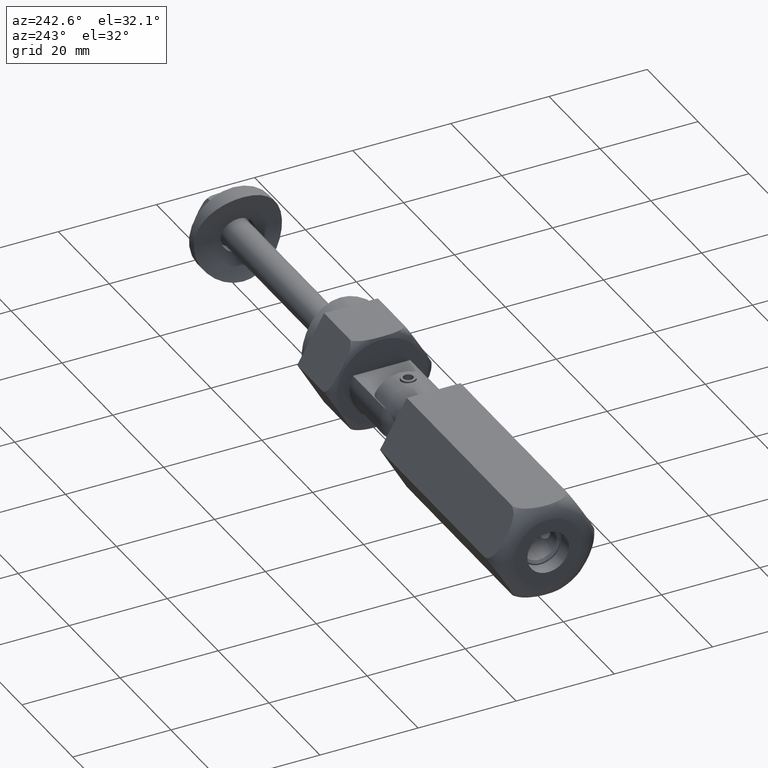
[diagram: clean part render]
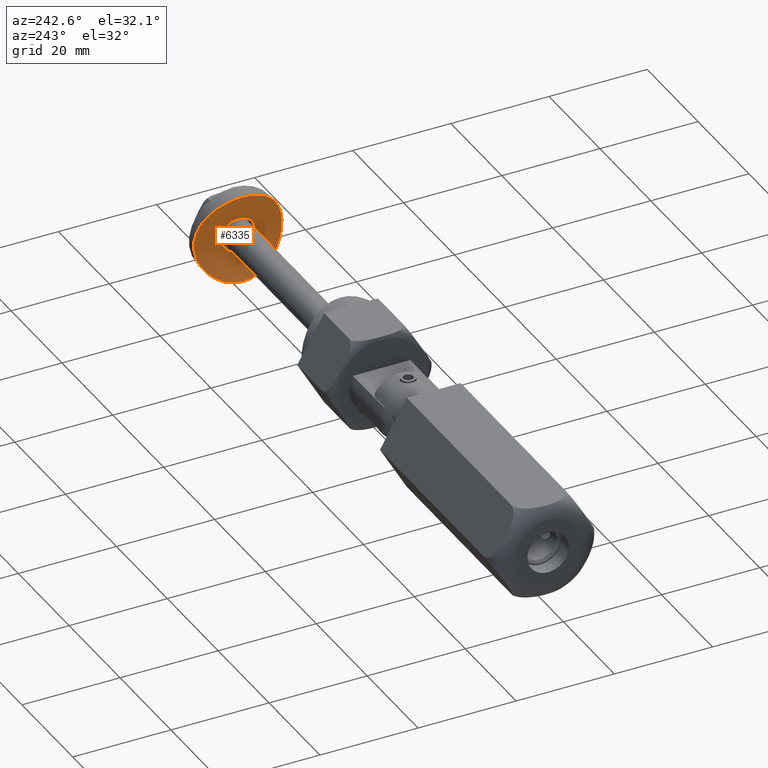
[diagram: same view with one face highlighted and labeled with its STEP entity id]
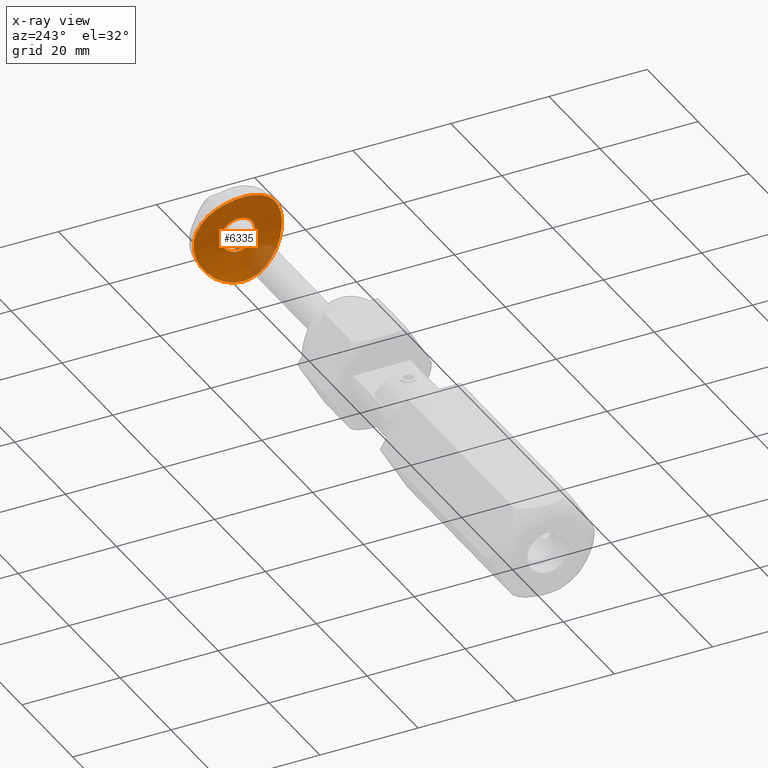
[diagram: x-ray of the same camera — body ghosted, the highlighted face saturated]
A machine part, auxiliary view. The second image highlights one B-rep face of the part: STEP entity #6335.
The next image is the same camera in x-ray: the body ghosted, the highlighted face saturated — about 10% of this face is hidden behind the body in this view.
In plain terms, the highlighted cylindrical surface (partial cylindrical patch) has radius 21.2 mm, axis along (0, 1, 0).
Its self-contained STEP definition (entity closure, byte-faithful):
#148 = CARTESIAN_POINT ( 'NONE',  ( -5.497450429022882723, 7.131813691955863455, 2.823855749445251195 ) ) ;
#271 = CARTESIAN_POINT ( 'NONE',  ( 9.000400974029087564, -0.2839722160764822645, 4.105397047312537850 ) ) ;
#323 = CARTESIAN_POINT ( 'NONE',  ( 3.745224452304390717, -8.189008184627281750, 2.431627000577344155 ) ) ;
#381 = CARTESIAN_POINT ( 'NONE',  ( 0.6023502318451280368, -8.984815514353620358, 2.106459186793928406 ) ) ;
#447 = CARTESIAN_POINT ( 'NONE',  ( -3.205093018567954477, 8.415055338208812685, 2.341889825580586670 ) ) ;
#450 = CARTESIAN_POINT ( 'NONE',  ( -3.037267722292587457, 1.754211687608835613, 2.318307036184326986 ) ) ;
#457 = B_SPLINE_CURVE_WITH_KNOTS ( 'NONE', 3,
 ( #2893, #2950, #12618, #16894, #4207, #5515, #1368, #12674, #11139, #5626, #4262, #15381, #15439, #7085, #8497, #148, #9893, #7377, #12962, #447, #11487, #17018, #10004, #1652, #14402, #17143, #7197, #13015, #3298, #5789, #5974, #4560, #15552, #12900, #8797, #10128, #4622, #15608, #10192, #1834, #6039, #8611, #3122, #7312, #14222, #271, #4498, #16953, #15792, #11427, #3061, #7448, #15671, #12835, #14339, #13074, #11610, #4435, #5850, #7256, #17081, #11676, #14162, #8670, #323, #10067, #1897, #8732, #1710, #381, #17212, #8861, #1777, #14285, #509, #5912, #15734, #11544, #3176, #3235, #10261, #7705, #3555, #2096, #3426, #7577, #11810, #14656, #13203, #6176, #14530, #4821 ),
 .UNSPECIFIED., .T., .F.,
 ( 4, 2, 2, 2, 2, 2, 2, 2, 2, 2, 2, 2, 2, 2, 2, 2, 2, 2, 2, 2, 2, 2, 2, 2, 2, 2, 2, 2, 2, 2, 2, 2, 2, 2, 2, 2, 2, 2, 2, 2, 2, 2, 2, 2, 2, 4 ),
 ( 0.000000000000000000, 0.001779121269481610899, 0.002668681904222417432, 0.003558242538963223098, 0.005337363808444837467, 0.006226924443185643566, 0.007116485077926449666, 0.008006045712667254899, 0.008895606347408060999, 0.01067472761688967146, 0.01156428825163047756, 0.01245384888637128193, 0.01423297015585289066, 0.01512253079059369502, 0.01601209142533449939, 0.01779121269481610812, 0.01957033396429771338, 0.02134945523377932211, 0.02312857650326093431, 0.02401813713800173694, 0.02490769777274254304, 0.02668681904222415177, 0.02846594031170575703, 0.02935550094644655966, 0.03024506158118736576, 0.03202418285066897796, 0.03291374348540978406, 0.03380330412015058322, 0.03469286475489138932, 0.03558242538963219542, 0.03736154665911380762, 0.03825110729385461372, 0.03914066792859541982, 0.04091978919807702508, 0.04180934983281783118, 0.04269891046755863728, 0.04447803173704026336, 0.04625715300652187556, 0.04803627427600348082, 0.04981539554548509302, 0.05070495618022589912, 0.05159451681496670522, 0.05337363808444831048, 0.05515275935392992268, 0.05604231998867072878, 0.05693188062341153488 ),
 .UNSPECIFIED. ) ;
#509 = CARTESIAN_POINT ( 'NONE',  ( -2.919603497746500409, -8.533584350906092908, 2.294788581318373932 ) ) ;
#542 = EDGE_LOOP ( 'NONE', ( #7105 ) ) ;
#765 = CARTESIAN_POINT ( 'NONE',  ( -1.751451033441404181, -3.038880866574763751, 2.171607237727812834 ) ) ;
#825 = CARTESIAN_POINT ( 'NONE',  ( 1.126580436386506401, 3.321674498855188506, 2.128887815577758857 ) ) ;
#883 = CARTESIAN_POINT ( 'NONE',  ( -2.313446218120369213, 2.636264786901057811, 2.225980594803974366 ) ) ;
#943 = CARTESIAN_POINT ( 'NONE',  ( -2.132264311149690172, -2.784928464283146443, 2.206635869383564152 ) ) ;
#1001 = CARTESIAN_POINT ( 'NONE',  ( 3.037866316434117309, -1.753302620773837361, 2.318390375629150402 ) ) ;
#1368 = CARTESIAN_POINT ( 'NONE',  ( -8.417805771125099312, 3.197972917069190402, 3.842463500720283420 ) ) ;
#1641 = FACE_OUTER_BOUND ( 'NONE', #12981, .T. ) ;
#1652 = CARTESIAN_POINT ( 'NONE',  ( -1.195367113660793734, 8.940039705118071112, 2.125653978507204833 ) ) ;
#1710 = CARTESIAN_POINT ( 'NONE',  ( 1.198462509687661548, -8.924876651340719391, 2.131800132847656126 ) ) ;
#1777 = CARTESIAN_POINT ( 'NONE',  ( -1.177433114945624526, -8.942818534641482131, 2.124482320378104472 ) ) ;
#1834 = CARTESIAN_POINT ( 'NONE',  ( 8.064130121432256715, 4.006978217306452983, 3.693055384883217052 ) ) ;
#1897 = CARTESIAN_POINT ( 'NONE',  ( 2.369100941744511690, -8.702862009132209309, 2.224698540167216354 ) ) ;
#2096 = CARTESIAN_POINT ( 'NONE',  ( -7.796916004019784019, -4.532705707074540236, 3.582807033181333534 ) ) ;
#2099 = CARTESIAN_POINT ( 'NONE',  ( -3.499999999999999112, 0.2316520886482952846, 2.390911067193770556 ) ) ;
#2116 = CARTESIAN_POINT ( 'NONE',  ( 0.000000000000000000, -9.000000000000000000, 23.30000000000000071 ) ) ;
#2158 = CARTESIAN_POINT ( 'NONE',  ( 1.550818453994531110, 3.146055797144051702, 2.155730404485694418 ) ) ;
#2222 = CARTESIAN_POINT ( 'NONE',  ( 1.755190324390375034, 3.036641687054298266, 2.171926716492254883 ) ) ;
#2281 = CARTESIAN_POINT ( 'NONE',  ( -2.311839137334110283, -2.637664469096317355, 2.225804067002453479 ) ) ;
#2345 = CARTESIAN_POINT ( 'NONE',  ( 2.638349240458453870, -2.311094447710475563, 2.264186578598627264 ) ) ;
#2406 = CARTESIAN_POINT ( 'NONE',  ( 2.637164923716952103, 2.312677023180730096, 2.264023663331899971 ) ) ;
#2893 = CARTESIAN_POINT ( 'NONE',  ( -9.000000000000000000, 2.710505431213761085E-16, 4.105209039950448613 ) ) ;
#2950 = CARTESIAN_POINT ( 'NONE',  ( -9.000000000000000000, 0.6022301676324366415, 4.105209039950446837 ) ) ;
#3061 = CARTESIAN_POINT ( 'NONE',  ( 8.536066545482777101, -2.912700169554784946, 3.892880292925777752 ) ) ;
#3122 = CARTESIAN_POINT ( 'NONE',  ( 8.702408039283348273, 2.372073640349042556, 3.968027577799811301 ) ) ;
#3176 = CARTESIAN_POINT ( 'NONE',  ( -5.950024793402118206, -6.777821217551546873, 2.947482170566961379 ) ) ;
#3235 = CARTESIAN_POINT ( 'NONE',  ( -6.570051494431054628, -6.157908511444627031, 3.142585294229900850 ) ) ;
#3298 = CARTESIAN_POINT ( 'NONE',  ( 1.478072324521910952, 8.882734505041486983, 2.149582081430981173 ) ) ;
#3347 = ORIENTED_EDGE ( 'NONE', *, *, #18016, .F. ) ;
#3426 = CARTESIAN_POINT ( 'NONE',  ( -8.075678375321286850, -4.016880884885595471, 3.696806480158376207 ) ) ;
#3555 = CARTESIAN_POINT ( 'NONE',  ( -7.311472419907169673, -5.256110834363020068, 3.399942953120395739 ) ) ;
#3558 = CARTESIAN_POINT ( 'NONE',  ( 2.316023470696364939, -2.634023451689342377, 2.226263542081074132 ) ) ;
#3617 = CARTESIAN_POINT ( 'NONE',  ( 3.500089168962008834, -0.2272391878289064526, 2.390925993302861929 ) ) ;
#3674 = CARTESIAN_POINT ( 'NONE',  ( -3.477226063791793109, -0.4604854586558340124, 2.387061447148276727 ) ) ;
#3736 = CARTESIAN_POINT ( 'NONE',  ( -2.779188294754456390, -2.139915187423183429, 2.282557432926595187 ) ) ;
#4207 = CARTESIAN_POINT ( 'NONE',  ( -8.693075955343484651, 2.349217114833197506, 3.964036308711037293 ) ) ;
#4262 = CARTESIAN_POINT ( 'NONE',  ( -7.136393349933621622, 5.491527681049625187, 3.336275164817628980 ) ) ;
#4435 = CARTESIAN_POINT ( 'NONE',  ( 6.773075127230494097, -5.933833905163506728, 3.210108331659413228 ) ) ;
#4498 = CARTESIAN_POINT ( 'NONE',  ( 8.986205239822112389, -0.5808486025061201374, 4.098720092987608865 ) ) ;
#4560 = CARTESIAN_POINT ( 'NONE',  ( 4.012651566003444081, 8.077845520338662766, 2.475794371760390522 ) ) ;
#4622 = CARTESIAN_POINT ( 'NONE',  ( 7.143967367260362522, 5.505046255798359489, 3.336905660156288089 ) ) ;
#4625 = CARTESIAN_POINT ( 'NONE',  ( -2.783298210497564096, 2.134362886967654749, 2.283109508869928916 ) ) ;
#4821 = CARTESIAN_POINT ( 'NONE',  ( -9.000000000000000000, 2.710505431213761085E-16, 4.105209039950448613 ) ) ;
#4852 = B_SPLINE_CURVE_WITH_KNOTS ( 'NONE', 3,
 ( #10264, #2099, #15737, #7380, #17146, #8800, #450, #4625, #14405, #883, #11944, #16107, #9242, #6300, #9177, #10706, #17539, #12071, #14659, #16042, #825, #2158, #2222, #16170, #12126, #2406, #6420, #14901, #7770, #7831, #17661, #17476, #6542, #3617, #13572, #16288, #12188, #17599, #1001, #10766, #2345, #3558, #4955, #6483, #7950, #10588, #7891, #9116, #10645, #7708, #16227, #13395, #9298, #13330, #765, #943, #2281, #12008, #3736, #14719, #13510, #10526, #6364, #3674, #5136, #5023 ),
 .UNSPECIFIED., .T., .F.,
 ( 4, 2, 2, 2, 2, 2, 2, 2, 2, 2, 2, 2, 2, 2, 2, 2, 2, 2, 2, 2, 2, 2, 2, 2, 2, 2, 2, 2, 2, 2, 2, 2, 4 ),
 ( 0.000000000000000000, 0.0006849990492943954347, 0.001369998098588790869, 0.002054997147883185979, 0.002739996197177581739, 0.003424995246471976632, 0.004109994295766371958, 0.004794993345060768151, 0.005479992394355163478, 0.006164991443649557937, 0.006849990492943953263, 0.007534989542238349457, 0.008219988591532743916, 0.008904987640827139242, 0.009589986690121536303, 0.01027498573941593336, 0.01095998478871033043, 0.01164498383800472749, 0.01232998288729912108, 0.01301498193659351814, 0.01369998098588791173, 0.01438498003518230706, 0.01506997908447670412, 0.01575497813377110118, 0.01643997718306549824, 0.01712497623235989877, 0.01780997528165429583, 0.01849497433094869289, 0.01917997338024308995, 0.01986497242953748701, 0.02054997147883188754, 0.02123497052812628461, 0.02191996957742068167 ),
 .UNSPECIFIED. ) ;
#4955 = CARTESIAN_POINT ( 'NONE',  ( 2.136284364077222886, -2.781794003270770865, 2.207049254354865209 ) ) ;
#5020 = CARTESIAN_POINT ( 'NONE',  ( -9.000000000000000000, 0.000000000000000000, 4.105209039950447725 ) ) ;
#5023 = CARTESIAN_POINT ( 'NONE',  ( -3.500000000000000000, -8.131516293641283255E-17, 2.390911067193771000 ) ) ;
#5136 = CARTESIAN_POINT ( 'NONE',  ( -3.500000000000000888, -0.2316520886482962560, 2.390911067193771444 ) ) ;
#5515 = CARTESIAN_POINT ( 'NONE',  ( -8.519085452557785487, 2.917802884023286136, 3.886750800336526535 ) ) ;
#5626 = CARTESIAN_POINT ( 'NONE',  ( -7.312433258681627635, 5.254898464817233439, 3.400285243842550820 ) ) ;
#5789 = CARTESIAN_POINT ( 'NONE',  ( 2.349030549496118780, 8.708199343826661831, 2.222486883313150141 ) ) ;
#5850 = CARTESIAN_POINT ( 'NONE',  ( 6.575604964608815273, -6.151986061130804373, 3.144396724207855875 ) ) ;
#5912 = CARTESIAN_POINT ( 'NONE',  ( -4.005712576156172489, -8.080867107885593370, 2.474600650052571460 ) ) ;
#5914 = VERTEX_POINT ( 'NONE', #5020 ) ;
#5954 = VERTEX_POINT ( 'NONE', #16345 ) ;
#5974 = CARTESIAN_POINT ( 'NONE',  ( 2.915995473697132745, 8.535217117214010329, 2.294146457838617703 ) ) ;
#6039 = CARTESIAN_POINT ( 'NONE',  ( 8.189956734736412614, 3.743000991661145527, 3.745470069114856582 ) ) ;
#6176 = CARTESIAN_POINT ( 'NONE',  ( -8.984718648477102221, -0.6034601397220153984, 4.098023013587533292 ) ) ;
#6300 = CARTESIAN_POINT ( 'NONE',  ( -1.130995421334589635, 3.320057561690506365, 2.129139573495061111 ) ) ;
#6335 = ADVANCED_FACE ( 'NONE', ( #14300, #1641 ), #12379, .F. ) ;
#6364 = CARTESIAN_POINT ( 'NONE',  ( -3.386783194588574464, -0.9126048154589467831, 2.372224207840019528 ) ) ;
#6420 = CARTESIAN_POINT ( 'NONE',  ( 2.781691936470198634, 2.136371827064198481, 2.282898434627250506 ) ) ;
#6483 = CARTESIAN_POINT ( 'NONE',  ( 1.756936801351070443, -3.035664974415376083, 2.172069312910204442 ) ) ;
#6542 = CARTESIAN_POINT ( 'NONE',  ( 3.499910295345006972, 0.2299777461154664804, 2.390896051414324930 ) ) ;
#7085 = CARTESIAN_POINT ( 'NONE',  ( -6.161404844027698502, 6.566661741195224167, 3.013965487062178816 ) ) ;
#7105 = ORIENTED_EDGE ( 'NONE', *, *, #9769, .T. ) ;
#7197 = CARTESIAN_POINT ( 'NONE',  ( 0.5875516269330899322, 8.985797788739249725, 2.106042185908241215 ) ) ;
#7256 = CARTESIAN_POINT ( 'NONE',  ( 5.955765860730117822, -6.772806331197203988, 2.949163426065100513 ) ) ;
#7312 = CARTESIAN_POINT ( 'NONE',  ( 8.939971974155941581, 1.198140283409450335, 4.076733770865094364 ) ) ;
#7377 = CARTESIAN_POINT ( 'NONE',  ( -4.529556461873096573, 7.799281068273506534, 2.583449115028530585 ) ) ;
#7380 = CARTESIAN_POINT ( 'NONE',  ( -3.388085022150917780, 0.9071978540637513078, 2.372436356687507075 ) ) ;
#7448 = CARTESIAN_POINT ( 'NONE',  ( 8.195999223167362402, -3.729967871242137356, 3.747998092720924657 ) ) ;
#7577 = CARTESIAN_POINT ( 'NONE',  ( -8.533054436092360362, -2.922138815264546441, 3.891528669452685829 ) ) ;
#7705 = CARTESIAN_POINT ( 'NONE',  ( -7.138145225870883515, -5.489248663871813427, 3.336902390179000477 ) ) ;
#7708 = CARTESIAN_POINT ( 'NONE',  ( -0.2284514707409497636, -3.500185375067812910, 2.099969395635310487 ) ) ;
#7770 = CARTESIAN_POINT ( 'NONE',  ( 3.144959258377305833, 1.552980274944577799, 2.334382246063314348 ) ) ;
#7831 = CARTESIAN_POINT ( 'NONE',  ( 3.320605742135959826, 1.129643296139878128, 2.361483480286096892 ) ) ;
#7891 = CARTESIAN_POINT ( 'NONE',  ( 0.9101748762663407488, -3.387278660266522579, 2.118363935215678229 ) ) ;
#7950 = CARTESIAN_POINT ( 'NONE',  ( 1.556204404468899183, -3.143401925480575176, 2.156126715384310888 ) ) ;
#8497 = CARTESIAN_POINT ( 'NONE',  ( -5.946797421235012315, 6.761680869955754680, 2.949814619520471304 ) ) ;
#8611 = CARTESIAN_POINT ( 'NONE',  ( 8.528391803012052463, 2.933994583505460607, 3.889521855624835656 ) ) ;
#8670 = CARTESIAN_POINT ( 'NONE',  ( 4.013155420945840213, -8.061124604704584584, 2.481620030197768667 ) ) ;
#8732 = CARTESIAN_POINT ( 'NONE',  ( 1.496328371181379291, -8.879702304195816964, 2.150857130149487872 ) ) ;
#8797 = CARTESIAN_POINT ( 'NONE',  ( 5.953767838570621862, 6.774246431175876104, 2.948631012675696272 ) ) ;
#8800 = CARTESIAN_POINT ( 'NONE',  ( -3.144792970768488516, 1.553342875179987592, 2.334356956455917231 ) ) ;
#8861 = CARTESIAN_POINT ( 'NONE',  ( -0.5856921983027995049, -9.000526453280953021, 2.099776505755873046 ) ) ;
#9116 = CARTESIAN_POINT ( 'NONE',  ( 0.4626387774401372610, -3.476785928022042782, 2.103866153282410778 ) ) ;
#9177 = CARTESIAN_POINT ( 'NONE',  ( -0.9100132660212730817, 3.387472811121648775, 2.118333464570299363 ) ) ;
#9242 = CARTESIAN_POINT ( 'NONE',  ( -1.551964471413712188, 3.145367885556102028, 2.155830871819476968 ) ) ;
#9298 = CARTESIAN_POINT ( 'NONE',  ( -1.127079799142055583, -3.321472759838139943, 2.128918759278375372 ) ) ;
#9748 = AXIS2_PLACEMENT_3D ( 'NONE', #2116, #15806, #11894 ) ;
#9769 = EDGE_CURVE ( 'NONE', #5954, #5954, #4852, .T. ) ;
#9893 = CARTESIAN_POINT ( 'NONE',  ( -5.261681691625369695, 7.307607166974761093, 2.761796661982786727 ) ) ;
#10004 = CARTESIAN_POINT ( 'NONE',  ( -2.069273427123894837, 8.763926665609220734, 2.199204624531772900 ) ) ;
#10067 = CARTESIAN_POINT ( 'NONE',  ( 2.930983491255338969, -8.529688198176652136, 2.296378237583078796 ) ) ;
#10128 = CARTESIAN_POINT ( 'NONE',  ( 6.775583308319271580, 5.952246384174825877, 3.207288834857337179 ) ) ;
#10192 = CARTESIAN_POINT ( 'NONE',  ( 7.786055058421186281, 4.523650702319240935, 3.580978259992664281 ) ) ;
#10261 = CARTESIAN_POINT ( 'NONE',  ( -6.767985068317842412, -5.939641931502988470, 3.208390767290667078 ) ) ;
#10264 = CARTESIAN_POINT ( 'NONE',  ( -3.500000000000000000, -8.131516293641283255E-17, 2.390911067193771000 ) ) ;
#10526 = CARTESIAN_POINT ( 'NONE',  ( -3.319065593604421327, -1.133907466767667627, 2.361240511285288779 ) ) ;
#10588 = CARTESIAN_POINT ( 'NONE',  ( 1.132090624845834004, -3.319807017092943457, 2.129182338853568446 ) ) ;
#10645 = CARTESIAN_POINT ( 'NONE',  ( 0.2340966869037648945, -3.499812348612850066, 2.100030980172074901 ) ) ;
#10706 = CARTESIAN_POINT ( 'NONE',  ( -0.4580480389297850174, 3.477540536709195163, 2.103742939931357636 ) ) ;
#10766 = CARTESIAN_POINT ( 'NONE',  ( 2.782822552050209453, -2.135087932694611723, 2.283043207214388914 ) ) ;
#11139 = CARTESIAN_POINT ( 'NONE',  ( -7.801320390038438468, 4.525699097909324564, 3.584505830987002373 ) ) ;
#11427 = CARTESIAN_POINT ( 'NONE',  ( 8.708359458168319023, -2.349133148422251516, 3.970722831128999264 ) ) ;
#11487 = CARTESIAN_POINT ( 'NONE',  ( -2.928297529281808753, 8.515469180634772428, 2.301264842937780664 ) ) ;
#11544 = CARTESIAN_POINT ( 'NONE',  ( -5.501311983712250608, -7.146811310810093687, 2.820136018022912250 ) ) ;
#11610 = CARTESIAN_POINT ( 'NONE',  ( 7.142772226264595403, -5.483223177737663434, 3.338559700049898105 ) ) ;
#11676 = CARTESIAN_POINT ( 'NONE',  ( 4.783214464045443037, -7.629261748838103152, 2.645153529278332361 ) ) ;
#11810 = CARTESIAN_POINT ( 'NONE',  ( -8.705287611884930499, -2.359308650723932921, 3.969338804076948612 ) ) ;
#11894 = DIRECTION ( 'NONE',  ( 0.000000000000000000, 0.000000000000000000, 1.000000000000000000 ) ) ;
#11944 = CARTESIAN_POINT ( 'NONE',  ( -2.137512234397016986, 2.781002601358620652, 2.207159566396101447 ) ) ;
#12008 = CARTESIAN_POINT ( 'NONE',  ( -2.634181019568260673, -2.315807505944566635, 2.263664178963428864 ) ) ;
#12071 = CARTESIAN_POINT ( 'NONE',  ( 0.2266849831836880713, 3.500130494934292180, 2.099978456028448903 ) ) ;
#12126 = CARTESIAN_POINT ( 'NONE',  ( 2.311144342984660760, 2.638508228965967817, 2.225713509168732784 ) ) ;
#12188 = CARTESIAN_POINT ( 'NONE',  ( 3.321139145130335368, -1.127842110824953226, 2.361570729045106898 ) ) ;
#12379 = CYLINDRICAL_SURFACE ( 'NONE', #9748, 21.19999999999999574 ) ;
#12618 = CARTESIAN_POINT ( 'NONE',  ( -8.940179620051695863, 1.192762043537304750, 4.076847759062592225 ) ) ;
#12674 = CARTESIAN_POINT ( 'NONE',  ( -8.077715715060879376, 4.012037878863901064, 3.697672808785787968 ) ) ;
#12835 = CARTESIAN_POINT ( 'NONE',  ( 7.790441516584821535, -4.516112634829505978, 3.582711630924209079 ) ) ;
#12900 = CARTESIAN_POINT ( 'NONE',  ( 5.496644906564071675, 7.150322684329964318, 2.818899160525556002 ) ) ;
#12962 = CARTESIAN_POINT ( 'NONE',  ( -4.015580886328727672, 8.075779872960261230, 2.476572724249879176 ) ) ;
#12981 = EDGE_LOOP ( 'NONE', ( #3347 ) ) ;
#13015 = CARTESIAN_POINT ( 'NONE',  ( 1.183904790595069478, 8.926821845496240471, 2.130979375828014444 ) ) ;
#13074 = CARTESIAN_POINT ( 'NONE',  ( 7.316073530914032119, -5.249737311130738604, 3.401632962292483686 ) ) ;
#13203 = CARTESIAN_POINT ( 'NONE',  ( -8.924885096745494906, -1.198231756554555050, 4.070140005998574395 ) ) ;
#13330 = CARTESIAN_POINT ( 'NONE',  ( -1.550448968162864372, -3.146203770435664904, 2.155707678619462442 ) ) ;
#13395 = CARTESIAN_POINT ( 'NONE',  ( -0.9041893388819918220, -3.388896340241048133, 2.118104430533367832 ) ) ;
#13510 = CARTESIAN_POINT ( 'NONE',  ( -3.143987851673773370, -1.554761379237297181, 2.334237773707898089 ) ) ;
#13572 = CARTESIAN_POINT ( 'NONE',  ( 3.477997714786525307, -0.4547291357107196563, 2.387190470263222064 ) ) ;
#14162 = CARTESIAN_POINT ( 'NONE',  ( 4.532780756239579212, -7.780812614444896802, 2.588547621772299578 ) ) ;
#14222 = CARTESIAN_POINT ( 'NONE',  ( 8.999172276844687346, 0.6052519994996065078, 4.104820939877700248 ) ) ;
#14285 = CARTESIAN_POINT ( 'NONE',  ( -2.354678229249704380, -8.707229325129514308, 2.222894217259156591 ) ) ;
#14300 = FACE_BOUND ( 'NONE', #542, .T. ) ;
#14339 = CARTESIAN_POINT ( 'NONE',  ( 7.639907694094671520, -4.766181298621798845, 3.523707296290869095 ) ) ;
#14402 = CARTESIAN_POINT ( 'NONE',  ( -0.6064474908965796773, 8.999256637721661178, 2.100315578128659766 ) ) ;
#14405 = CARTESIAN_POINT ( 'NONE',  ( -2.635741645386204368, 2.314042222943813343, 2.263859829486521313 ) ) ;
#14530 = CARTESIAN_POINT ( 'NONE',  ( -9.000000000000000000, -0.3011150838162178767, 4.105209039950448613 ) ) ;
#14656 = CARTESIAN_POINT ( 'NONE',  ( -8.880462410946023510, -1.491469006224793503, 4.049506213162338497 ) ) ;
#14659 = CARTESIAN_POINT ( 'NONE',  ( 0.4590335899886232585, 3.477316445911413201, 2.103779074841384489 ) ) ;
#14719 = CARTESIAN_POINT ( 'NONE',  ( -3.035812752972018913, -1.756976242285883005, 2.318088252811143501 ) ) ;
#14901 = CARTESIAN_POINT ( 'NONE',  ( 3.035149404128160811, 1.757772086340379625, 2.318002089094626239 ) ) ;
#15381 = CARTESIAN_POINT ( 'NONE',  ( -6.766048313375105039, 5.941849588956706896, 3.207737569877102679 ) ) ;
#15439 = CARTESIAN_POINT ( 'NONE',  ( -6.571030345259964989, 6.156745591378433247, 3.142925159791039924 ) ) ;
#15552 = CARTESIAN_POINT ( 'NONE',  ( 4.527725506764322283, 7.799994965017359227, 2.583139751377061089 ) ) ;
#15608 = CARTESIAN_POINT ( 'NONE',  ( 7.633095921920673987, 4.777164185214711090, 3.521066813696617892 ) ) ;
#15671 = CARTESIAN_POINT ( 'NONE',  ( 8.068293523425873914, -3.998611255628535588, 3.694769083929056563 ) ) ;
#15734 = CARTESIAN_POINT ( 'NONE',  ( -4.531143009220560458, -7.798082359429831634, 2.583870890236030782 ) ) ;
#15737 = CARTESIAN_POINT ( 'NONE',  ( -3.477229276685080528, 0.4593523931639140745, 2.387063412337750545 ) ) ;
#15792 = CARTESIAN_POINT ( 'NONE',  ( 8.883445497185359585, -1.474070503388015485, 4.050882716875977785 ) ) ;
#15806 = DIRECTION ( 'NONE',  ( -0.000000000000000000, 1.000000000000000000, -0.000000000000000000 ) ) ;
#16042 = CARTESIAN_POINT ( 'NONE',  ( 0.9082143567806685303, 3.387858938013993182, 2.118271080315295762 ) ) ;
#16107 = CARTESIAN_POINT ( 'NONE',  ( -1.755071107980006540, 3.036883176365889891, 2.171900191555174775 ) ) ;
#16170 = CARTESIAN_POINT ( 'NONE',  ( 2.133974681225372372, 2.783529750205419262, 2.206818025532601979 ) ) ;
#16227 = CARTESIAN_POINT ( 'NONE',  ( -0.4560529739544845196, -3.477670549433095726, 2.103720280169794066 ) ) ;
#16288 = CARTESIAN_POINT ( 'NONE',  ( 3.388192740053830754, -0.9074120602962160165, 2.372453070477746895 ) ) ;
#16345 = CARTESIAN_POINT ( 'NONE',  ( -3.500000000000000000, 0.000000000000000000, 2.390911067193770556 ) ) ;
#16894 = CARTESIAN_POINT ( 'NONE',  ( -8.765548746403903024, 2.062165950460749908, 3.996910775638059299 ) ) ;
#16953 = CARTESIAN_POINT ( 'NONE',  ( 8.927896380613054461, -1.175557709462171863, 4.071539299863849770 ) ) ;
#17018 = CARTESIAN_POINT ( 'NONE',  ( -2.360735361079835393, 8.689940755913463377, 2.229909037420221285 ) ) ;
#17081 = CARTESIAN_POINT ( 'NONE',  ( 5.507888469158012335, -7.141587104885536164, 2.821951802872823656 ) ) ;
#17143 = CARTESIAN_POINT ( 'NONE',  ( 0.2865226143655731916, 9.000361350476717703, 2.099846596592882086 ) ) ;
#17146 = CARTESIAN_POINT ( 'NONE',  ( -3.320600948318714440, 1.129692993203106122, 2.361482373378766653 ) ) ;
#17212 = CARTESIAN_POINT ( 'NONE',  ( 0.3048979933382157670, -8.999731393797212320, 2.100114030898147632 ) ) ;
#17476 = CARTESIAN_POINT ( 'NONE',  ( 3.476902944007814078, 0.4622046229343148571, 2.387008304216344357 ) ) ;
#17539 = CARTESIAN_POINT ( 'NONE',  ( -0.2306968966090028050, 3.499868355390663321, 2.100021733776378241 ) ) ;
#17599 = CARTESIAN_POINT ( 'NONE',  ( 3.146732856218461105, -1.549214439599097881, 2.334651019177073294 ) ) ;
#17661 = CARTESIAN_POINT ( 'NONE',  ( 3.386984049756484705, 0.9114967044412274344, 2.372257293328037253 ) ) ;
#18016 = EDGE_CURVE ( 'NONE', #5914, #5914, #457, .T. ) ;